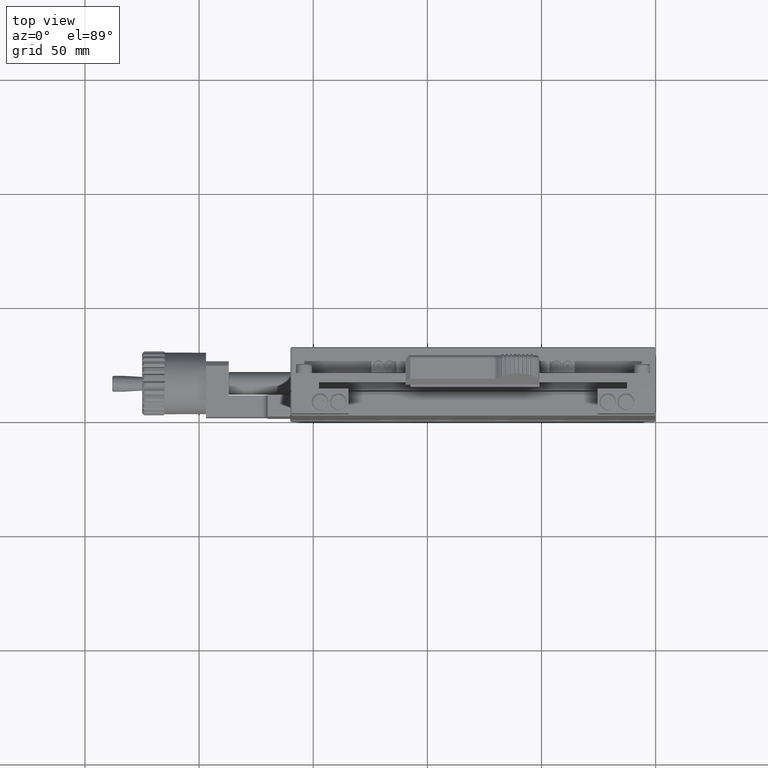
[diagram: clean part render]
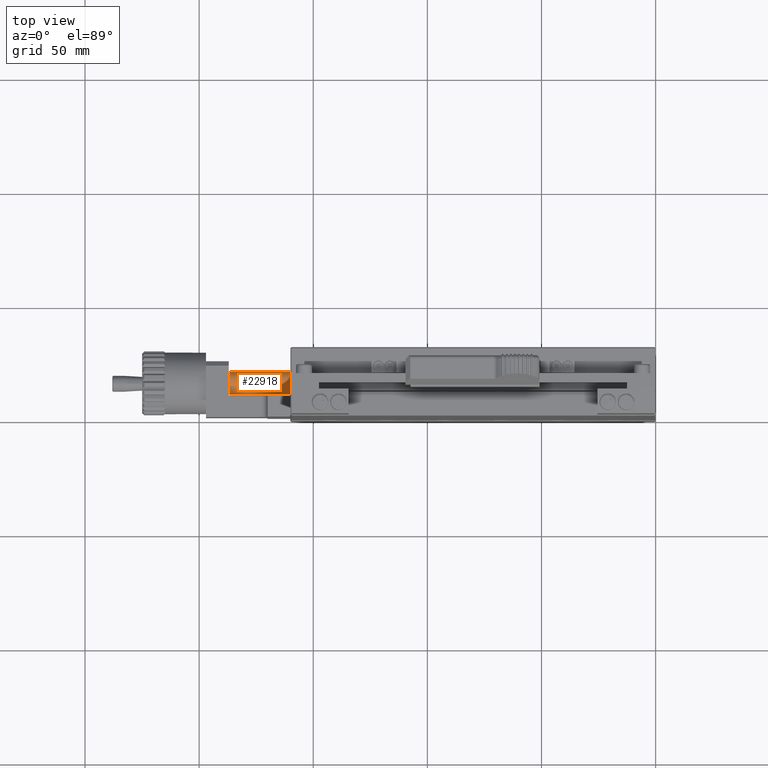
[diagram: same view with one face highlighted and labeled with its STEP entity id]
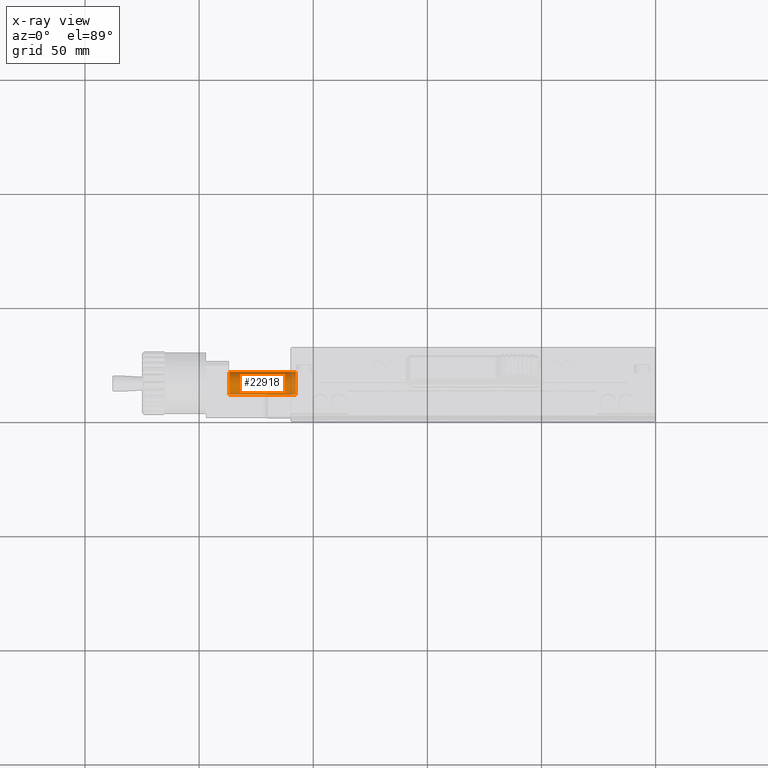
[diagram: x-ray of the same camera — body ghosted, the highlighted face saturated]
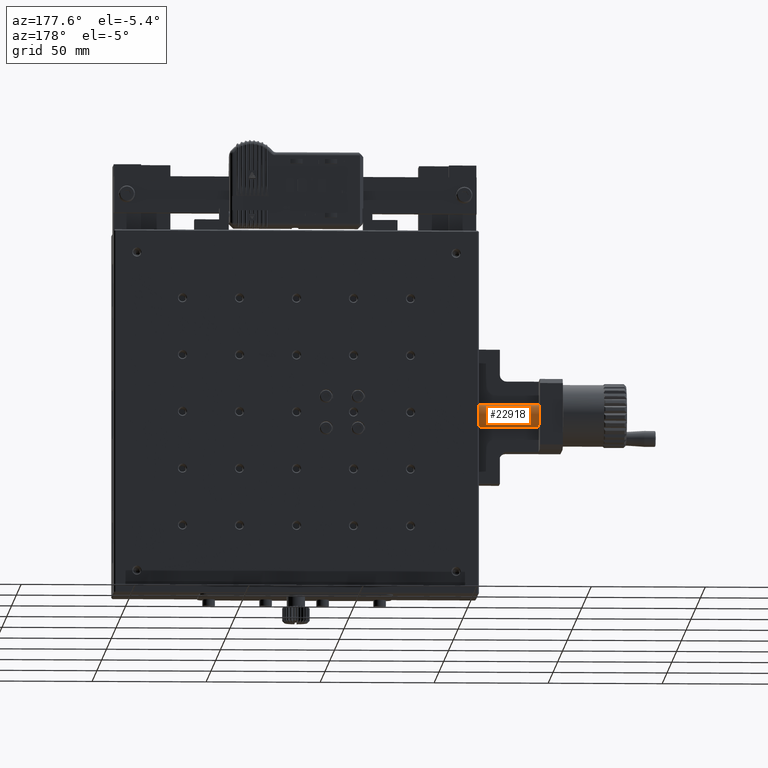
[diagram: same view with one face highlighted and labeled with its STEP entity id]
A machine part, top view. The second image highlights one B-rep face of the part: STEP entity #22918.
The next image is the same camera in x-ray: the body ghosted, the highlighted face saturated — about 8% of this face is hidden behind the body in this view.
A second angle (auxiliary view) of the same face is appended — the face is thin or edge-on in the first view.
In plain terms, the highlighted cylindrical surface (bore or boss wall) has radius 5 mm, axis along (1, 0, 0).
Its self-contained STEP definition (entity closure, byte-faithful):
#75 = FACE_OUTER_BOUND ( 'NONE', #29515, .T. ) ;
#7357 = DIRECTION ( 'NONE',  ( 0.000000000000000000, 0.000000000000000000, -1.000000000000000000 ) ) ;
#7676 = VERTEX_POINT ( 'NONE', #60960 ) ;
#10553 = EDGE_CURVE ( 'NONE', #18302, #18302, #13857, .T. ) ;
#13275 = CARTESIAN_POINT ( 'NONE',  ( -157.5999999999999659, 15.50000000000000000, -5.000000000000000000 ) ) ;
#13648 = DIRECTION ( 'NONE',  ( 0.000000000000000000, 0.000000000000000000, -1.000000000000000000 ) ) ;
#13857 = CIRCLE ( 'NONE', #15821, 5.000000000000000000 ) ;
#15821 = AXIS2_PLACEMENT_3D ( 'NONE', #28381, #56591, #13648 ) ;
#17064 = DIRECTION ( 'NONE',  ( -1.000000000000000000, -0.000000000000000000, -0.000000000000000000 ) ) ;
#17781 = EDGE_CURVE ( 'NONE', #7676, #7676, #32704, .T. ) ;
#18247 = CARTESIAN_POINT ( 'NONE',  ( 250.0000000000000000, 15.50000000000000000, 0.000000000000000000 ) ) ;
#18302 = VERTEX_POINT ( 'NONE', #13275 ) ;
#19161 = FACE_OUTER_BOUND ( 'NONE', #42906, .T. ) ;
#22918 = ADVANCED_FACE ( 'NONE', ( #75, #19161 ), #51764, .T. ) ;
#28381 = CARTESIAN_POINT ( 'NONE',  ( -157.5999999999999659, 15.50000000000000000, 0.000000000000000000 ) ) ;
#29515 = EDGE_LOOP ( 'NONE', ( #58295 ) ) ;
#32704 = CIRCLE ( 'NONE', #44742, 4.999999999938609108 ) ;
#39178 = AXIS2_PLACEMENT_3D ( 'NONE', #18247, #42366, #47660 ) ;
#42366 = DIRECTION ( 'NONE',  ( 1.000000000000000000, 0.000000000000000000, 0.000000000000000000 ) ) ;
#42906 = EDGE_LOOP ( 'NONE', ( #48130 ) ) ;
#44742 = AXIS2_PLACEMENT_3D ( 'NONE', #54984, #17064, #7357 ) ;
#47660 = DIRECTION ( 'NONE',  ( 0.000000000000000000, 0.000000000000000000, -1.000000000000000000 ) ) ;
#48130 = ORIENTED_EDGE ( 'NONE', *, *, #10553, .T. ) ;
#51764 = CYLINDRICAL_SURFACE ( 'NONE', #39178, 5.000000000000000000 ) ;
#54984 = CARTESIAN_POINT ( 'NONE',  ( -186.8000000000620275, 15.50000000000000000, 0.000000000000000000 ) ) ;
#56591 = DIRECTION ( 'NONE',  ( -1.000000000000000000, -0.000000000000000000, -0.000000000000000000 ) ) ;
#58295 = ORIENTED_EDGE ( 'NONE', *, *, #17781, .F. ) ;
#60960 = CARTESIAN_POINT ( 'NONE',  ( -186.8000000000620275, 15.50000000000000000, -4.999999999938609108 ) ) ;